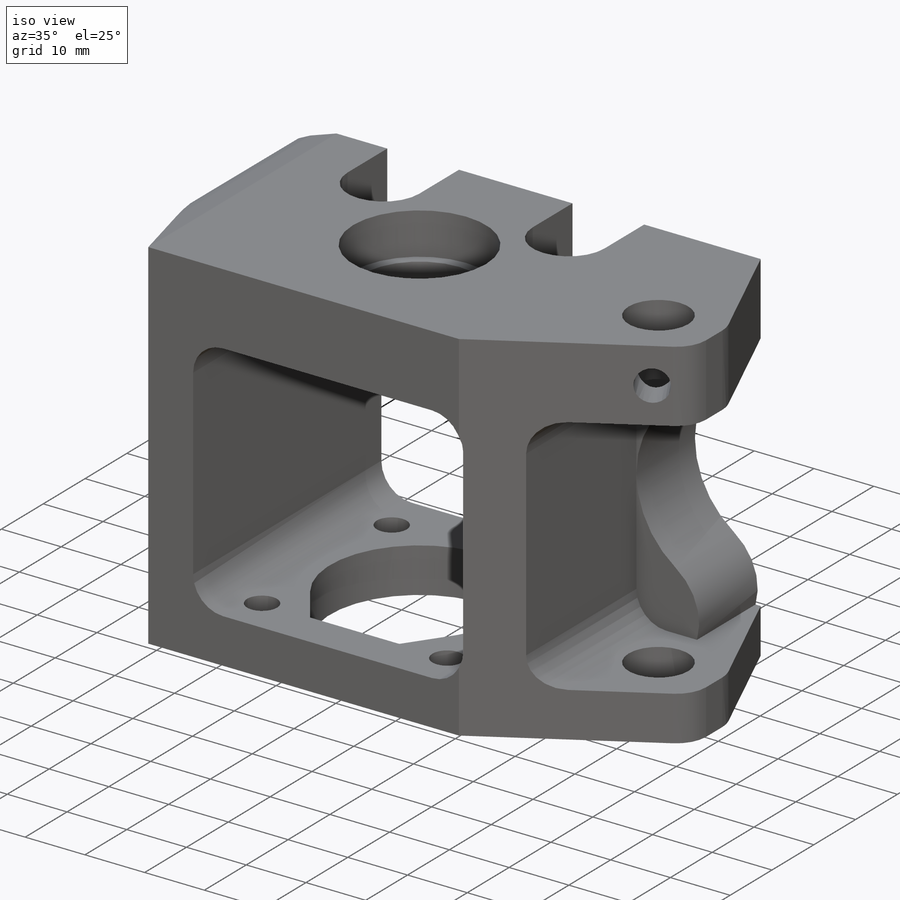
[diagram: iso view]
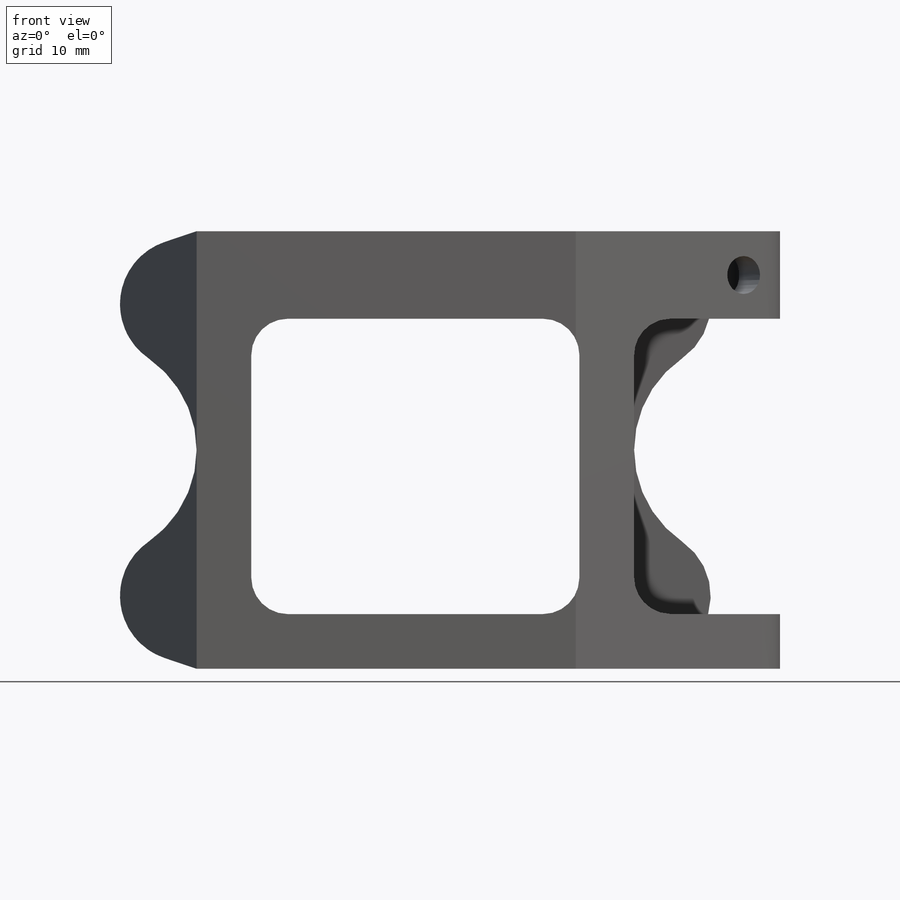
[diagram: front view]
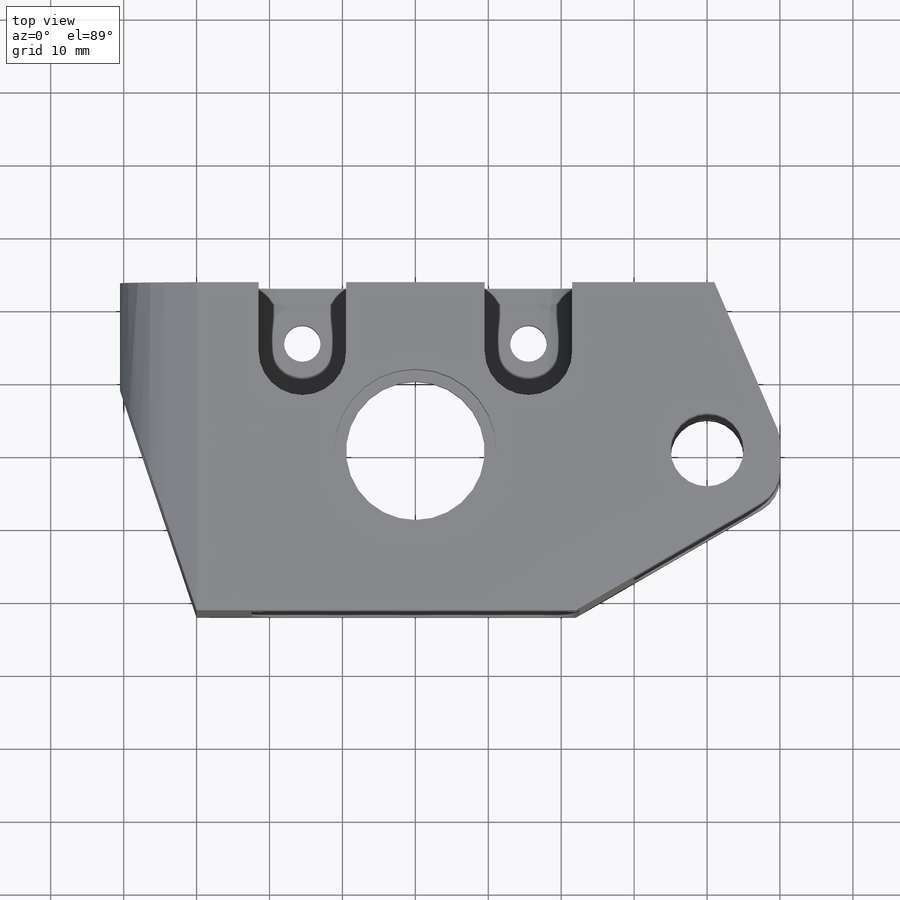
[diagram: top view]
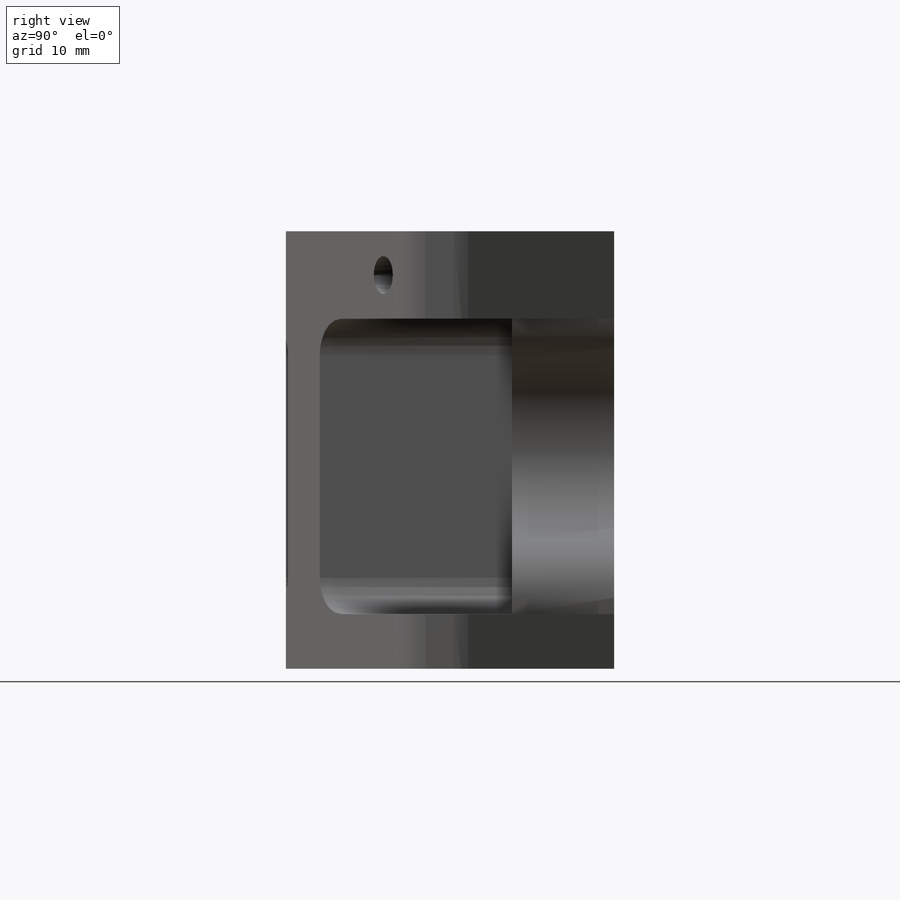
[diagram: right view]
SOLIDWORKS PART (.sldprt)
format: sldprt  version: not decoded by parser v0  size: 440,320 bytes
history: native  units: mm
features: sketch x10, cut_extrude x7, extrude x3, material x1, fillet x1 (+11 scaffold rows collapsed)
feature tree (33):
  scaffold x11  (default folders/planes/origin — collapsed)
  material  "Material <not specified>"
  sketch  "Sketch1"  dims[c1.D1=19.0mm c1.D5=10.0mm c1.D2=30.0mm c1.D3=23.0mm c1.D4=40.0mm c1.D6=10.0mm c1.D7=10.0mm c1.D8=10.0mm c1.D9=22.0mm c1.D10=22.0mm c1.D11=~7.636022mm c2.D11=40.0deg c3.D11=9.0mm]
  extrude  "Boss-Extrude1"  Depth=60mm
  sketch  "Sketch2"  dims[D1=22.2mm]
  cut_extrude  "Cut-Extrude1"  Depth=7mm
  sketch  "Sketch3"  dims[D6=5.0mm D1=12.0mm D2=7.5mm D3=7.5mm D4=22.5mm D5=7.5mm]
  cut_extrude  "Cut-Extrude2"  Depth=14mm
  sketch  "Sketch4"  dims[c1.D2=30.0mm c1.D3=5.0mm c1.D1=31.0mm c1.D4=31.0mm c1.D5=15.5mm c1.D6=~7.862319mm c2.D6=35.0deg c2.D7=~7.862319mm c3.D7=35.0deg]
  cut_extrude  "Cut-Extrude3"  Depth=16mm
  sketch  "Sketch7"  dims[D1=18.0mm]
  extrude  "Boss-Extrude2"  Depth=14mm
  sketch  "Sketch8"
  extrude  "Boss-Extrude3"  [1 undecoded]
  sketch  "Sketch5"  dims[c1.D1=8.0mm c1.D2=40.0mm c1.D3=10.0mm c1.D4=10.0mm c1.D5=10.0mm c2.D4=9.0mm c2.D2=31.5mm]
  cut_extrude  "Cut-Extrude4"  Depth=13mm
  sketch  "Sketch6"  dims[c1.D1=18.0mm c1.D2=4.0mm c1.D3=5.0mm c2.D1=18.0mm]
  cut_extrude  "Cut-Extrude5"  [1 undecoded]
  fillet  "Fillet1"  Radius=5mm
  sketch  "Sketch9"  dims[D1=5.2mm]
  cut_extrude  "Cut-Extrude6"  Depth=10mm
  sketch  "Sketch10"  dims[D1=12.0mm D2=2.0mm D3=2.0mm]
  cut_extrude  "Cut-Extrude7"  Depth=20mm
decode coverage: 18 of 21 modeling features carry decoded parameters
note: ~ marks probable driven/reference dimensions
note: 2 parameter values undecoded
note: suppression state not decoded; provenance and decode notes live in map.json
